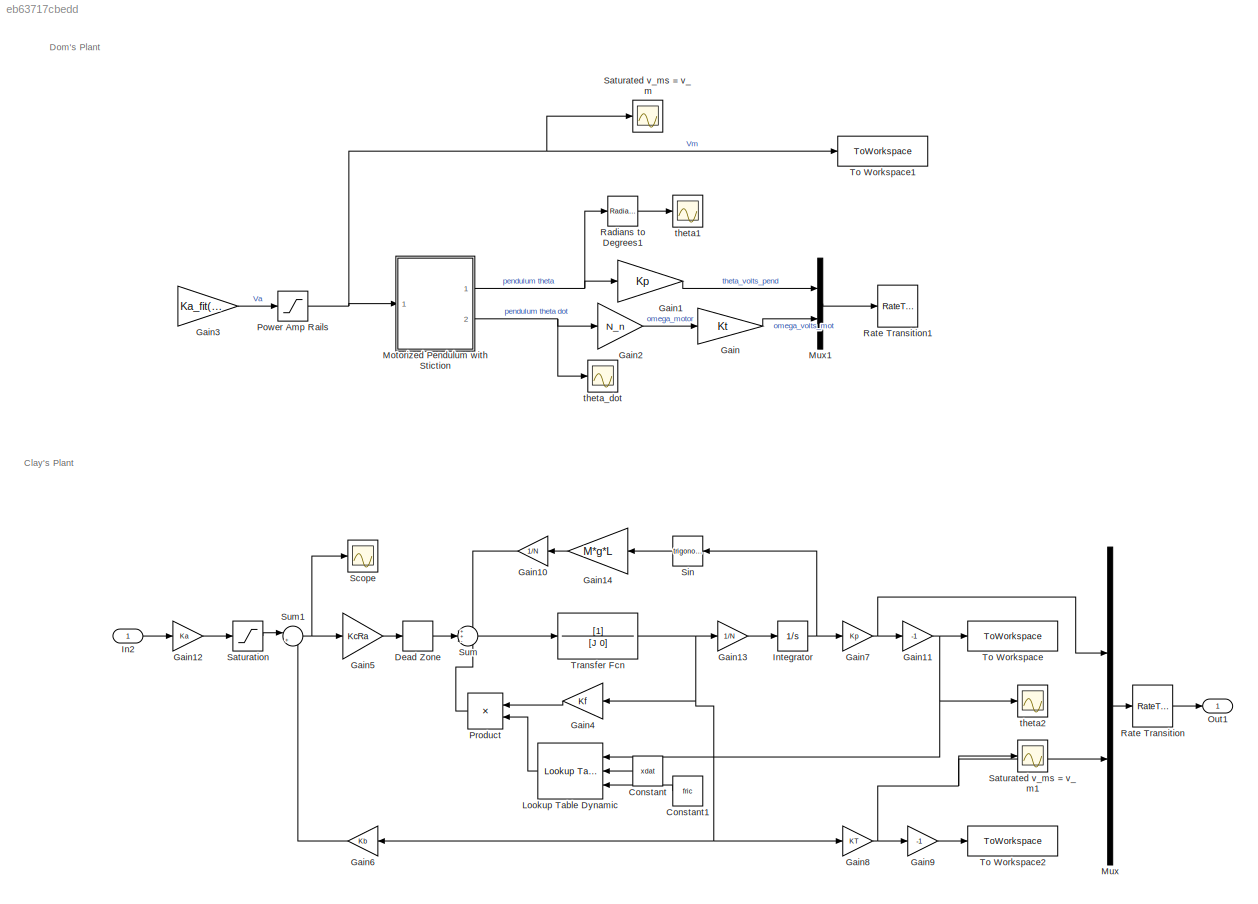
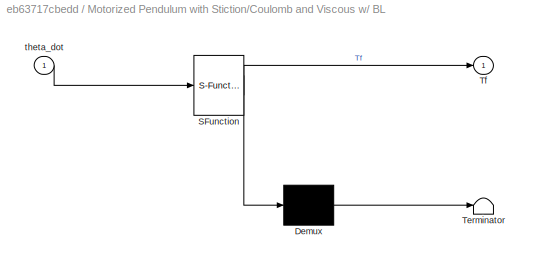
MODEL slx_eb63717cbedd
KIND model
CONFIG AbsTol = auto
CONFIG EnableMultiTasking = off
CONFIG FixedStep = auto
CONFIG MaxStep = auto
CONFIG MinStep = auto
CONFIG RelTol = 1e-3
CONFIG SampleTimeConstraint = Unconstrained
CONFIG SolverName = VariableStepAuto
CONFIG StartTime = 0.0
CONFIG StopTime = 5
BLOCK [Constant] Constant
  NameLocation = top
  Value = xdat
BLOCK [Constant] Constant1
  NameLocation = top
  Value = fric
BLOCK [DeadZone] Dead Zone
  LowerValue = -dz
  UpperValue = dz
BLOCK [Gain] Gain
  Commented = on
  Gain = Kt
BLOCK [Gain] Gain1
  Commented = on
  Gain = Kp
BLOCK [Gain] Gain10
  Gain = 1/N
  NameLocation = top
BLOCK [Gain] Gain11
  Gain = -1
BLOCK [Gain] Gain12
  Gain = Ka
BLOCK [Gain] Gain13
  Gain = 1/N
BLOCK [Gain] Gain14
  Gain = M*g*L
  NameLocation = top
BLOCK [Gain] Gain2
  Commented = on
  Gain = N_n
BLOCK [Gain] Gain3
  Commented = on
  Gain = Ka_fit(1)
BLOCK [Gain] Gain4
  Gain = Kf
  NameLocation = top
BLOCK [Gain] Gain5
  Gain = KcRa
BLOCK [Gain] Gain6
  Gain = Kb
  NameLocation = top
BLOCK [Gain] Gain7
  Gain = Kp
BLOCK [Gain] Gain8
  Gain = KT
BLOCK [Gain] Gain9
  Commented = on
  Gain = -1
BLOCK [Inport] In2
BLOCK [Integrator] Integrator
  InitialCondition = 1.9199
  Ports = [1, 1]
BLOCK [Reference] Lookup Table Dynamic  REF=simulink/Lookup
Tables/Lookup
Table
Dynamic
  NameLocation = top
  Ports = [3, 1]
  SourceBlock = simulink/Lookup\nTables/Lookup\nTable\nDynamic
  SourceProductBaseCode = SL
  SourceType = Lookup Table Dynamic
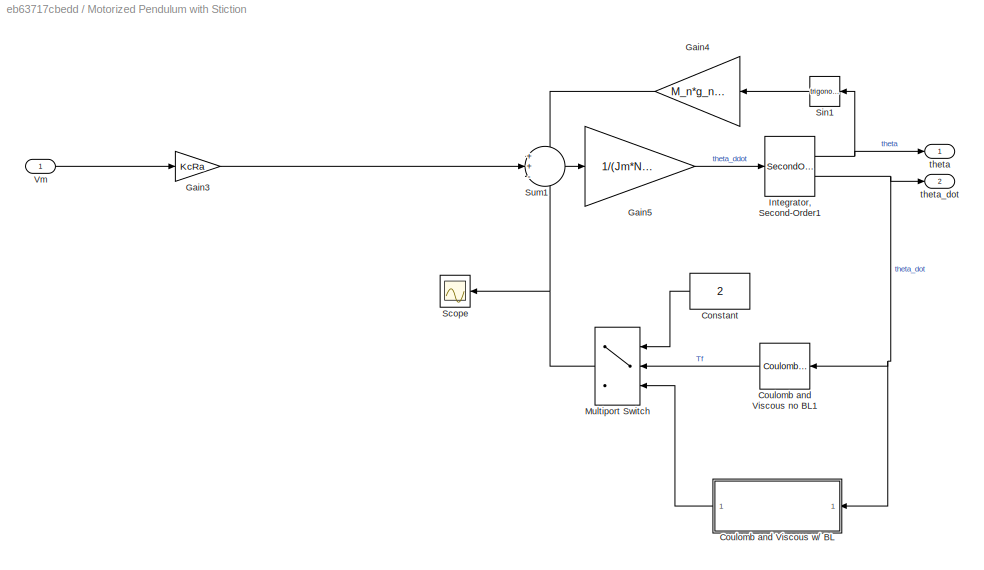
BLOCK [SubSystem] Motorized Pendulum with Stiction
  Commented = on
  NameLocation = top
  Ports = [1, 2]
  RequestExecContextInheritance = off
BLOCK [Constant] Motorized Pendulum with Stiction/Constant
  NameLocation = top
  Value = 2
BLOCK [Reference] Motorized Pendulum with Stiction/Coulomb and Viscous no BL1  REF=simulink/Discontinuities/Coulomb &
Viscous Friction
  NameLocation = top
  Ports = [1, 1]
  SourceBlock = simulink/Discontinuities/Coulomb &\nViscous Friction
  SourceProductBaseCode = SL
  SourceType = Coulombic and Viscous Friction
BLOCK [SubSystem] Motorized Pendulum with Stiction/Coulomb and Viscous w// BL
  ErrorFcn = Stateflow.Translate.translate
  NameLocation = top
  PermitHierarchicalResolution = ExplicitOnly
  Ports = [1, 1]
  RequestExecContextInheritance = off
  SFBlockType = MATLAB Function
  TreatAsAtomicUnit = on
BLOCK [Demux] Motorized Pendulum with Stiction/Coulomb and Viscous w// BL/ Demux 
  Outputs = 1
  Ports = [1, 1]
BLOCK [S-Function] Motorized Pendulum with Stiction/Coulomb and Viscous w// BL/ SFunction 
  EnableBusSupport = on
  FunctionName = sf_sfun
  Parameters = KcRa,Km,N_n,T_ba_n
  PortCounts = [1 2]
  Ports = [1, 2]
  SFcnIsStateOwnerBlock = off
  SFunctionDeploymentMode = off
  Tag = Stateflow S-Function 1
BLOCK [Terminator] Motorized Pendulum with Stiction/Coulomb and Viscous w// BL/ Terminator 
BLOCK [Outport] Motorized Pendulum with Stiction/Coulomb and Viscous w// BL/Tf
BLOCK [Inport] Motorized Pendulum with Stiction/Coulomb and Viscous w// BL/theta_dot
BLOCK [Gain] Motorized Pendulum with Stiction/Gain3
  Gain = KcRa
BLOCK [Gain] Motorized Pendulum with Stiction/Gain4
  Gain = M_n*g_n*L_n
BLOCK [Gain] Motorized Pendulum with Stiction/Gain5
  Gain = 1/(Jm*N_n + Jp)
BLOCK [SecondOrderIntegrator] Motorized Pendulum with Stiction/Integrator, Second-Order1
  ICDXDT = x0(2)
  ICX = x0(1)
  Ports = [1, 2]
  ZeroCross = off
BLOCK [MultiPortSwitch] Motorized Pendulum with Stiction/Multiport Switch
  InputSameDT = off
  Inputs = 2
  NameLocation = top
  Ports = [3, 1]
  SaturateOnIntegerOverflow = off
BLOCK [Scope] Motorized Pendulum with Stiction/Scope
  Floating = off
  NameLocation = top
  NumInputPorts = 1
  Ports = [1]
  ScopeSpecificationString = Simulink.scopes.TimeScopeBlockCfg('CurrentConfiguration', extmgr.ConfigurationSet(extmgr.Configuration('Core','General UI',true),extmgr.Configuration('Core','Source UI',true),extmgr.Configuration('Sources','WiredSimulink',true,'DataLoggingVariableName','ScopeData1'),extmgr.Configuration('Visuals','Time Domain',true,'SerializedDisplays',{struct('MinYLimReal','0.0001','MaxYLimReal','0.00061','YLabel...<+1413ch>
BLOCK [Trigonometry] Motorized Pendulum with Stiction/Sin1
  NameLocation = top
  Ports = [1, 1]
BLOCK [Sum] Motorized Pendulum with Stiction/Sum1
  Inputs = ++-
  Ports = [3, 1]
BLOCK [Inport] Motorized Pendulum with Stiction/Vm
BLOCK [Outport] Motorized Pendulum with Stiction/theta
  NameLocation = top
BLOCK [Outport] Motorized Pendulum with Stiction/theta_dot
  Port = 2
BLOCK [Mux] Mux
  DisplayOption = bar
  Inputs = 2
  Ports = [2, 1]
BLOCK [Mux] Mux1
  Commented = on
  DisplayOption = bar
  Inputs = 2
  NameLocation = left
  Ports = [2, 1]
BLOCK [Outport] Out1
BLOCK [Saturate] Power Amp Rails
  Commented = on
  LowerLimit = -15
  UpperLimit = 15
BLOCK [Product] Product
  NameLocation = top
  Ports = [2, 1]
BLOCK [Reference] Radians to Degrees1  REF=simulink_extras/Transformations/Radians
to Degrees
  Commented = on
  Ports = [1, 1]
  SourceBlock = simulink_extras/Transformations/Radians\nto Degrees
  SourceProductBaseCode = SL
  SourceType = RadiansToDegrees
BLOCK [RateTransition] Rate Transition
  OutPortSampleTime = 0.01
BLOCK [RateTransition] Rate Transition1
  Commented = on
  InitialCondition = x0
  OutPortSampleTime = 0.01
BLOCK [Scope] Saturated v_ms = v_m
  Commented = on
  Floating = off
  NumInputPorts = 1
  Ports = [1]
  ScopeSpecificationString = Simulink.scopes.TimeScopeBlockCfg('CurrentConfiguration', extmgr.ConfigurationSet(extmgr.Configuration('Core','General UI',true),extmgr.Configuration('Core','Source UI',true),extmgr.Configuration('Sources','WiredSimulink',true,'DataLoggingVariableName','ScopeData1'),extmgr.Configuration('Visuals','Time Domain',true,'SerializedDisplays',{struct('MinYLimReal','-1.90536','MaxYLimReal','-0.52903','YLa...<+1556ch>
BLOCK [Scope] Saturated v_ms = v_m1
  Floating = off
  NumInputPorts = 1
  Ports = [1]
  ScopeSpecificationString = Simulink.scopes.TimeScopeBlockCfg('CurrentConfiguration', extmgr.ConfigurationSet(extmgr.Configuration('Core','General UI',true),extmgr.Configuration('Core','Source UI',true),extmgr.Configuration('Sources','WiredSimulink',true,'DataLoggingVariableName','ScopeData2'),extmgr.Configuration('Visuals','Time Domain',true,'SerializedDisplays',{struct('MinYLimReal','-0.43482','MaxYLimReal','2.36354','YLab...<+1557ch>
BLOCK [Saturate] Saturation
  LowerLimit = -14.5
  UpperLimit = 14.5
BLOCK [Scope] Scope
  Floating = off
  NumInputPorts = 1
  Ports = [1]
  ScopeSpecificationString = Simulink.scopes.TimeScopeBlockCfg('CurrentConfiguration', extmgr.ConfigurationSet(extmgr.Configuration('Core','General UI',true),extmgr.Configuration('Core','Source UI',true),extmgr.Configuration('Sources','WiredSimulink',true,'DataLoggingVariableName','ScopeData3'),extmgr.Configuration('Visuals','Time Domain',true,'SerializedDisplays',{struct('MinYLimReal','-13.57308','MaxYLimReal','5.23469','YLa...<+1411ch>
BLOCK [Trigonometry] Sin
  NameLocation = top
  Ports = [1, 1]
BLOCK [Sum] Sum
  Inputs = ++-
  Ports = [3, 1]
BLOCK [Sum] Sum1
  Inputs = |+-
  Ports = [2, 1]
BLOCK [ToWorkspace] To Workspace
  Commented = on
  FixptAsFi = on
  MaxDataPoints = inf
  Ports = [1]
  SampleTime = -1
  SaveFormat = Timeseries
  VariableName = theta
BLOCK [ToWorkspace] To Workspace1
  Commented = on
  FixptAsFi = on
  MaxDataPoints = inf
  Ports = [1]
  VariableName = vm
BLOCK [ToWorkspace] To Workspace2
  Commented = on
  FixptAsFi = on
  MaxDataPoints = inf
  Ports = [1]
  SampleTime = -1
  SaveFormat = Timeseries
  VariableName = omega
BLOCK [TransferFcn] Transfer Fcn
  Denominator = [J 0]
BLOCK [Scope] theta1
  Commented = on
  Floating = off
  NumInputPorts = 1
  Ports = [1]
  ScopeSpecificationString = Simulink.scopes.TimeScopeBlockCfg('CurrentConfiguration', extmgr.ConfigurationSet(extmgr.Configuration('Core','General UI',true),extmgr.Configuration('Core','Source UI',true),extmgr.Configuration('Sources','WiredSimulink',true,'DataLoggingVariableName','ScopeData1'),extmgr.Configuration('Visuals','Time Domain',true,'SerializedDisplays',{struct('MinYLimReal','-13.59697','MaxYLimReal','123.733','YLa...<+1453ch>
BLOCK [Scope] theta2
  Floating = off
  NumInputPorts = 1
  Ports = [1]
  ScopeSpecificationString = Simulink.scopes.TimeScopeBlockCfg('CurrentConfiguration', extmgr.ConfigurationSet(extmgr.Configuration('Core','General UI',true),extmgr.Configuration('Core','Source UI',true),extmgr.Configuration('Sources','WiredSimulink',true,'DataLoggingVariableName','ScopeData1'),extmgr.Configuration('Visuals','Time Domain',true,'SerializedDisplays',{struct('MinYLimReal','-1.16156','MaxYLimReal','10.45386','YLa...<+1442ch>
BLOCK [Scope] theta_dot
  Commented = on
  Floating = off
  NumInputPorts = 1
  Ports = [1]
  ScopeSpecificationString = Simulink.scopes.TimeScopeBlockCfg('CurrentConfiguration', extmgr.ConfigurationSet(extmgr.Configuration('Core','General UI',true),extmgr.Configuration('Core','Source UI',true),extmgr.Configuration('Sources','WiredSimulink',true,'DataLoggingVariableName','ScopeData2'),extmgr.Configuration('Visuals','Time Domain',true,'SerializedDisplays',{struct('MinYLimReal','-0.00767','MaxYLimReal','0.00095','YLab...<+1450ch>
ANNOTATION (root): Clay's Plant
ANNOTATION (root): Dom's Plant
LINE Constant1:1 -> Lookup Table Dynamic:3
LINE Constant:1 -> Lookup Table Dynamic:2
LINE Dead Zone:1 -> Sum:2
LINE Gain10:1 -> Sum:1
NET Gain11:1 -> Lookup Table Dynamic:1, To Workspace:1, theta2:1
LINE Gain12:1 -> Saturation:1
LINE Gain13:1 -> Integrator:1
LINE Gain14:1 -> Gain10:1
LINE Gain1:1 -> Mux1:1
LINE Gain2:1 -> Gain:1
LINE Gain3:1 -> Power Amp Rails:1
LINE Gain4:1 -> Product:1
LINE Gain5:1 -> Dead Zone:1
LINE Gain6:1 -> Sum1:2
NET Gain7:1 -> Gain11:1, Mux:1
NET Gain8:1 -> Gain9:1, Mux:2, Saturated v_ms = v_m1:1
LINE Gain9:1 -> To Workspace2:1
LINE Gain:1 -> Mux1:2
LINE In2:1 -> Gain12:1
NET Integrator:1 -> Gain7:1, Sin:1
LINE Lookup Table Dynamic:1 -> Product:2
LINE Motorized Pendulum with Stiction/Constant:1 -> Motorized Pendulum with Stiction/Multiport Switch:1
LINE Motorized Pendulum with Stiction/Coulomb and Viscous no BL1:1 -> Motorized Pendulum with Stiction/Multiport Switch:2
LINE Motorized Pendulum with Stiction/Coulomb and Viscous w// BL:1 -> Motorized Pendulum with Stiction/Multiport Switch:3
LINE Motorized Pendulum with Stiction/Gain3:1 -> Motorized Pendulum with Stiction/Sum1:2
LINE Motorized Pendulum with Stiction/Gain4:1 -> Motorized Pendulum with Stiction/Sum1:1
LINE Motorized Pendulum with Stiction/Gain5:1 -> Motorized Pendulum with Stiction/Integrator, Second-Order1:1
NET Motorized Pendulum with Stiction/Integrator, Second-Order1:1 -> Motorized Pendulum with Stiction/Sin1:1, Motorized Pendulum with Stiction/theta:1
NET Motorized Pendulum with Stiction/Integrator, Second-Order1:2 -> Motorized Pendulum with Stiction/Coulomb and Viscous no BL1:1, Motorized Pendulum with Stiction/Coulomb and Viscous w// BL:1, Motorized Pendulum with Stiction/theta_dot:1
NET Motorized Pendulum with Stiction/Multiport Switch:1 -> Motorized Pendulum with Stiction/Scope:1, Motorized Pendulum with Stiction/Sum1:3
LINE Motorized Pendulum with Stiction/Sin1:1 -> Motorized Pendulum with Stiction/Gain4:1
LINE Motorized Pendulum with Stiction/Sum1:1 -> Motorized Pendulum with Stiction/Gain5:1
LINE Motorized Pendulum with Stiction/Vm:1 -> Motorized Pendulum with Stiction/Gain3:1
NET Motorized Pendulum with Stiction:1 -> Gain1:1, Radians to Degrees1:1
NET Motorized Pendulum with Stiction:2 -> Gain2:1, theta_dot:1
LINE Mux1:1 -> Rate Transition1:1
LINE Mux:1 -> Rate Transition:1
NET Power Amp Rails:1 -> Motorized Pendulum with Stiction:1, Saturated v_ms = v_m:1, To Workspace1:1
LINE Product:1 -> Sum:3
LINE Radians to Degrees1:1 -> theta1:1
LINE Rate Transition:1 -> Out1:1
LINE Saturation:1 -> Sum1:1
LINE Sin:1 -> Gain14:1
NET Sum1:1 -> Gain5:1, Scope:1
LINE Sum:1 -> Transfer Fcn:1
NET Transfer Fcn:1 -> Gain13:1, Gain4:1, Gain6:1, Gain8:1
note: NET lines group one-source signal fan-out (src -> all destinations, sorted); 1:1 wires keep LINE
CHART Motorized Pendulum with Stiction/Coulomb and Viscous w// BL states=1 transitions=1
  STATE_LABEL 'eML_blk_kernel()'
  STATE_LABEL 'SCRIPT:\nfunction Tf = fcn(theta_dot, Km,  KcRa, N_n, T_ba_n)\n\nTf = N_n*KcRa/Km*theta_dot + T_ba_n*erf(1e6*theta_dot);\n'
CHART  states=0 transitions=0
